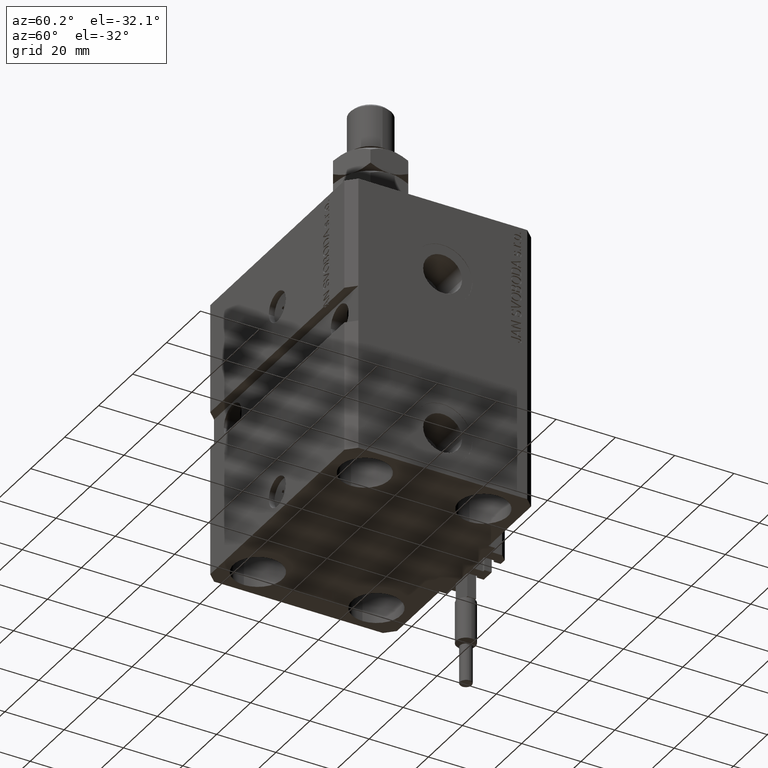
[diagram: clean part render]
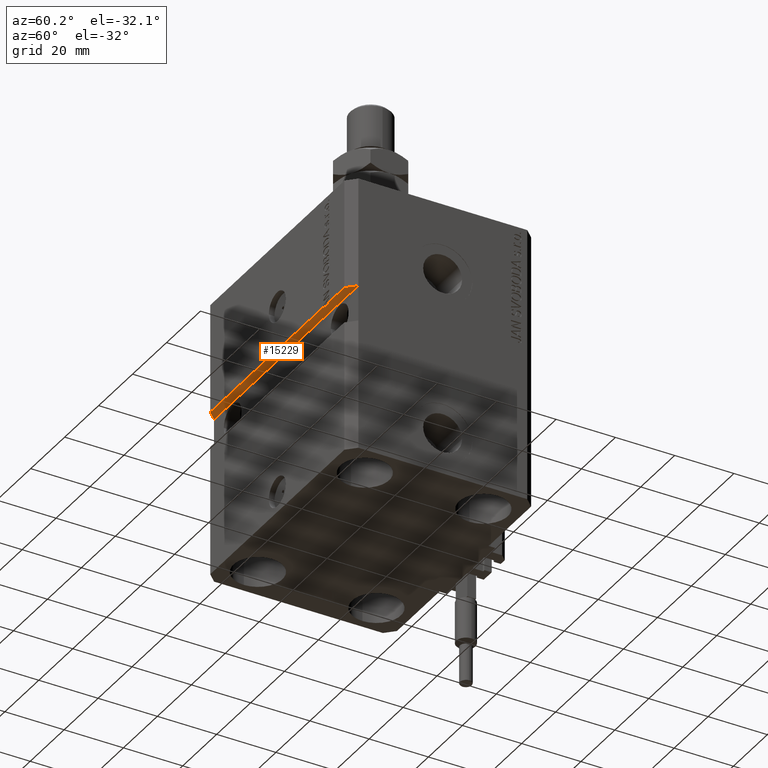
[diagram: same view with one face highlighted and labeled with its STEP entity id]
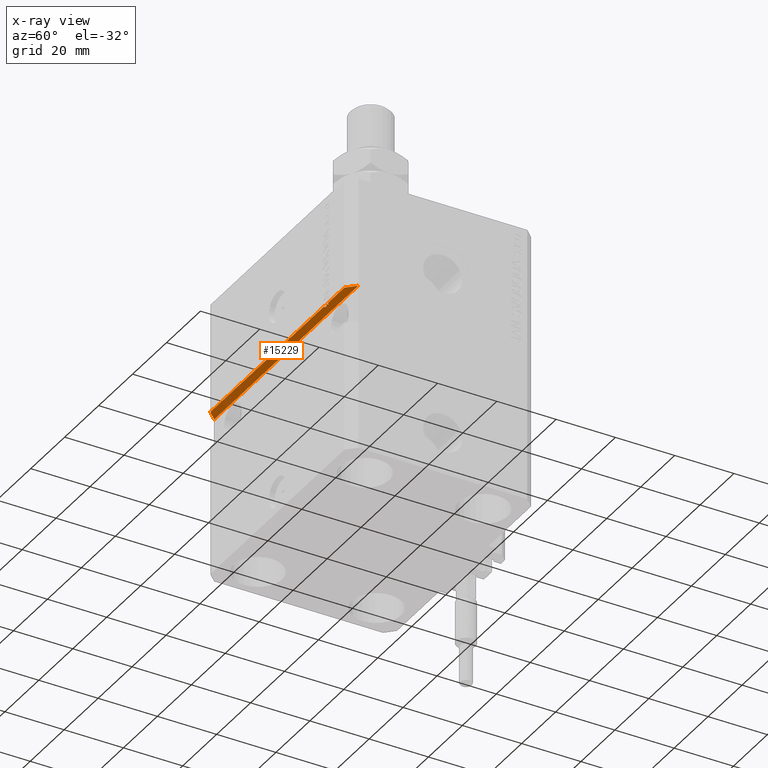
[diagram: x-ray of the same camera — body ghosted, the highlighted face saturated]
A machine part, auxiliary view. The second image highlights one B-rep face of the part: STEP entity #15229.
The next image is the same camera in x-ray: the body ghosted, the highlighted face saturated — about 0% of this face is hidden behind the body in this view.
In plain terms, the highlighted planar face has unit normal (-0, -0, 1).
Its self-contained STEP definition (entity closure, byte-faithful):
#422 = VECTOR ( 'NONE', #43861, 1000.000000000000000 ) ;
#675 = DIRECTION ( 'NONE',  ( -2.449021377849609204E-16, -2.880254154118838729E-32, 1.000000000000000000 ) ) ;
#2055 = VECTOR ( 'NONE', #23663, 1000.000000000000000 ) ;
#2340 = VECTOR ( 'NONE', #28203, 1000.000000000000000 ) ;
#2363 = LINE ( 'NONE', #48355, #23392 ) ;
#2446 = DIRECTION ( 'NONE',  ( -1.000000000000000000, -1.632680918566406300E-16, -2.449021377849609204E-16 ) ) ;
#2775 = VERTEX_POINT ( 'NONE', #20833 ) ;
#2930 = LINE ( 'NONE', #37019, #3511 ) ;
#3511 = VECTOR ( 'NONE', #14518, 1000.000000000000000 ) ;
#4741 = ORIENTED_EDGE ( 'NONE', *, *, #31388, .T. ) ;
#4755 = VERTEX_POINT ( 'NONE', #34281 ) ;
#4853 = CARTESIAN_POINT ( 'NONE',  ( 27.36912325285894809, -30.99999999999999289, -36.99999999999999289 ) ) ;
#6181 = LINE ( 'NONE', #27981, #34696 ) ;
#7265 = VECTOR ( 'NONE', #35663, 1000.000000000000000 ) ;
#8203 = VERTEX_POINT ( 'NONE', #45590 ) ;
#9291 = CARTESIAN_POINT ( 'NONE',  ( -39.50000000000002132, -31.50000000000000000, -37.00000000000000711 ) ) ;
#10853 = LINE ( 'NONE', #18643, #35277 ) ;
#11325 = ORIENTED_EDGE ( 'NONE', *, *, #27114, .T. ) ;
#11933 = CARTESIAN_POINT ( 'NONE',  ( 28.43744795748418142, -31.49999999999999289, -36.99999999999998579 ) ) ;
#12458 = LINE ( 'NONE', #12700, #42030 ) ;
#12524 = FACE_OUTER_BOUND ( 'NONE', #18189, .T. ) ;
#12700 = CARTESIAN_POINT ( 'NONE',  ( 8.943770726790874836E-15, -30.99999999999999289, -36.99999999999999289 ) ) ;
#12765 = DIRECTION ( 'NONE',  ( 1.000000000000000000, 0.000000000000000000, 2.449021377849609204E-16 ) ) ;
#12904 = LINE ( 'NONE', #4853, #7265 ) ;
#13077 = DIRECTION ( 'NONE',  ( -1.000000000000000000, 0.000000000000000000, -2.449021377849609204E-16 ) ) ;
#13714 = DIRECTION ( 'NONE',  ( -1.000000000000000000, -1.632680918566406300E-16, -2.449021377849609204E-16 ) ) ;
#14166 = ORIENTED_EDGE ( 'NONE', *, *, #26380, .T. ) ;
#14518 = DIRECTION ( 'NONE',  ( -1.000000000000000000, -1.632680918566406300E-16, -2.449021377849609204E-16 ) ) ;
#14587 = ORIENTED_EDGE ( 'NONE', *, *, #15788, .T. ) ;
#14618 = DIRECTION ( 'NONE',  ( -0.7071067811865483499, -0.7071067811865466846, -1.731719623548283221E-16 ) ) ;
#14742 = CARTESIAN_POINT ( 'NONE',  ( 29.45454545454545681, -30.99999999999999289, -36.99999999999998579 ) ) ;
#14888 = EDGE_CURVE ( 'NONE', #49856, #29574, #46977, .T. ) ;
#15182 = EDGE_CURVE ( 'NONE', #4755, #49856, #31225, .T. ) ;
#15229 = ADVANCED_FACE ( 'NONE', ( #12524 ), #24623, .F. ) ;
#15788 = EDGE_CURVE ( 'NONE', #29574, #42022, #27453, .T. ) ;
#15824 = CARTESIAN_POINT ( 'NONE',  ( -42.50000000000000711, -28.49999999999999289, -37.00000000000000711 ) ) ;
#16540 = CARTESIAN_POINT ( 'NONE',  ( 29.04545454545454319, -30.99999999999999289, -36.99999999999998579 ) ) ;
#17619 = VECTOR ( 'NONE', #19093, 1000.000000000000000 ) ;
#18189 = EDGE_LOOP ( 'NONE', ( #26958, #24941, #11325, #14166, #42157, #19830, #14587, #4741, #38740, #28349, #27290, #20502 ) ) ;
#18598 = CARTESIAN_POINT ( 'NONE',  ( 29.45454545454545681, -31.49999999999999289, -36.99999999999998579 ) ) ;
#18643 = CARTESIAN_POINT ( 'NONE',  ( 39.50000000000000000, -31.50000000000000711, -36.99999999999998579 ) ) ;
#19016 = CARTESIAN_POINT ( 'NONE',  ( 39.50000000000000711, -31.49999999999999289, -36.99999999999998579 ) ) ;
#19093 = DIRECTION ( 'NONE',  ( -2.352167425053553784E-16, 1.000000000000000000, -2.880254154118782896E-32 ) ) ;
#19414 = VECTOR ( 'NONE', #2446, 1000.000000000000000 ) ;
#19830 = ORIENTED_EDGE ( 'NONE', *, *, #14888, .T. ) ;
#20421 = EDGE_CURVE ( 'NONE', #38491, #46360, #10853, .T. ) ;
#20502 = ORIENTED_EDGE ( 'NONE', *, *, #29458, .F. ) ;
#20833 = CARTESIAN_POINT ( 'NONE',  ( 27.36912325285893033, -30.99999999999999289, -36.99999999999998579 ) ) ;
#23392 = VECTOR ( 'NONE', #13714, 1000.000000000000000 ) ;
#23649 = CARTESIAN_POINT ( 'NONE',  ( 29.45454545454545681, -30.99999999999999289, -36.99999999999998579 ) ) ;
#23663 = DIRECTION ( 'NONE',  ( -2.352167425053552798E-16, 1.000000000000000000, -2.880254154118780159E-32 ) ) ;
#23961 = EDGE_CURVE ( 'NONE', #8203, #44129, #39356, .T. ) ;
#24189 = CARTESIAN_POINT ( 'NONE',  ( 42.50000000000001421, -28.49999999999999289, -36.99999999999998579 ) ) ;
#24623 = PLANE ( 'NONE',  #46447 ) ;
#24941 = ORIENTED_EDGE ( 'NONE', *, *, #43608, .T. ) ;
#25154 = CARTESIAN_POINT ( 'NONE',  ( 42.50000000000001421, -31.49999999999999289, -36.99999999999998579 ) ) ;
#25334 = VERTEX_POINT ( 'NONE', #14742 ) ;
#26256 = CARTESIAN_POINT ( 'NONE',  ( 28.43744795748430576, -30.99999999999999289, -36.99999999999999289 ) ) ;
#26380 = EDGE_CURVE ( 'NONE', #25334, #4755, #6181, .T. ) ;
#26958 = ORIENTED_EDGE ( 'NONE', *, *, #20421, .T. ) ;
#27114 = EDGE_CURVE ( 'NONE', #38706, #25334, #34282, .T. ) ;
#27290 = ORIENTED_EDGE ( 'NONE', *, *, #23961, .T. ) ;
#27431 = CARTESIAN_POINT ( 'NONE',  ( 42.50000000000001421, -28.49999999999999289, -36.99999999999998579 ) ) ;
#27453 = LINE ( 'NONE', #36213, #2055 ) ;
#27981 = CARTESIAN_POINT ( 'NONE',  ( 8.943770726790874836E-15, -30.99999999999999289, -36.99999999999999289 ) ) ;
#28203 = DIRECTION ( 'NONE',  ( -0.7071067811865471286, 0.7071067811865479058, -1.731719623548279770E-16 ) ) ;
#28349 = ORIENTED_EDGE ( 'NONE', *, *, #35838, .T. ) ;
#28711 = EDGE_CURVE ( 'NONE', #2775, #46829, #12904, .T. ) ;
#29412 = DIRECTION ( 'NONE',  ( -1.000000000000000000, 0.000000000000000000, -2.449021377849609204E-16 ) ) ;
#29458 = EDGE_CURVE ( 'NONE', #38491, #44129, #2363, .T. ) ;
#29574 = VERTEX_POINT ( 'NONE', #11933 ) ;
#31225 = LINE ( 'NONE', #16540, #422 ) ;
#31388 = EDGE_CURVE ( 'NONE', #42022, #2775, #12458, .T. ) ;
#31872 = VECTOR ( 'NONE', #13077, 1000.000000000000000 ) ;
#34281 = CARTESIAN_POINT ( 'NONE',  ( 29.04545454545454319, -30.99999999999999289, -36.99999999999998579 ) ) ;
#34282 = LINE ( 'NONE', #23649, #17619 ) ;
#34696 = VECTOR ( 'NONE', #29412, 1000.000000000000000 ) ;
#35277 = VECTOR ( 'NONE', #14618, 1000.000000000000000 ) ;
#35663 = DIRECTION ( 'NONE',  ( 2.352167425053552305E-16, -1.000000000000000000, 2.880254154118779612E-32 ) ) ;
#35838 = EDGE_CURVE ( 'NONE', #46829, #8203, #48437, .T. ) ;
#36119 = CARTESIAN_POINT ( 'NONE',  ( 27.36912325285898717, -31.49999999999999289, -36.99999999999999289 ) ) ;
#36213 = CARTESIAN_POINT ( 'NONE',  ( 28.43744795748430576, -30.99999999999999289, -36.99999999999999289 ) ) ;
#36774 = CARTESIAN_POINT ( 'NONE',  ( 29.04545454545454319, -31.49999999999999289, -36.99999999999999289 ) ) ;
#37019 = CARTESIAN_POINT ( 'NONE',  ( 42.50000000000001421, -31.49999999999999289, -36.99999999999998579 ) ) ;
#38491 = VERTEX_POINT ( 'NONE', #24189 ) ;
#38706 = VERTEX_POINT ( 'NONE', #18598 ) ;
#38740 = ORIENTED_EDGE ( 'NONE', *, *, #28711, .T. ) ;
#39356 = LINE ( 'NONE', #15824, #2340 ) ;
#42022 = VERTEX_POINT ( 'NONE', #26256 ) ;
#42030 = VECTOR ( 'NONE', #47587, 1000.000000000000000 ) ;
#42157 = ORIENTED_EDGE ( 'NONE', *, *, #15182, .T. ) ;
#43608 = EDGE_CURVE ( 'NONE', #46360, #38706, #2930, .T. ) ;
#43861 = DIRECTION ( 'NONE',  ( 2.352167425053553784E-16, -1.000000000000000000, 2.880254154118782896E-32 ) ) ;
#44129 = VERTEX_POINT ( 'NONE', #46272 ) ;
#45590 = CARTESIAN_POINT ( 'NONE',  ( -39.50000000000000000, -31.50000000000000711, -37.00000000000000711 ) ) ;
#46272 = CARTESIAN_POINT ( 'NONE',  ( -42.50000000000000000, -28.50000000000000711, -37.00000000000000711 ) ) ;
#46360 = VERTEX_POINT ( 'NONE', #19016 ) ;
#46447 = AXIS2_PLACEMENT_3D ( 'NONE', #27431, #675, #12765 ) ;
#46829 = VERTEX_POINT ( 'NONE', #36119 ) ;
#46977 = LINE ( 'NONE', #9291, #31872 ) ;
#47587 = DIRECTION ( 'NONE',  ( -1.000000000000000000, 0.000000000000000000, -2.449021377849609204E-16 ) ) ;
#48355 = CARTESIAN_POINT ( 'NONE',  ( 42.50000000000001421, -28.49999999999999289, -36.99999999999998579 ) ) ;
#48437 = LINE ( 'NONE', #25154, #19414 ) ;
#49856 = VERTEX_POINT ( 'NONE', #36774 ) ;